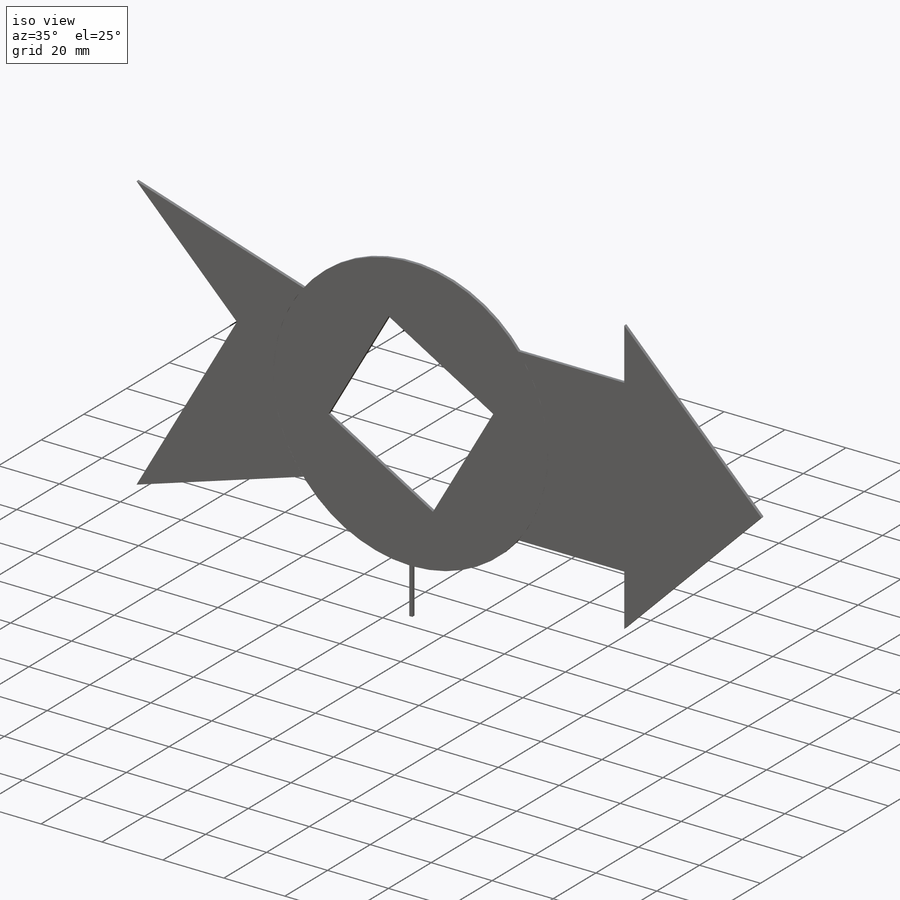
[diagram: iso view]
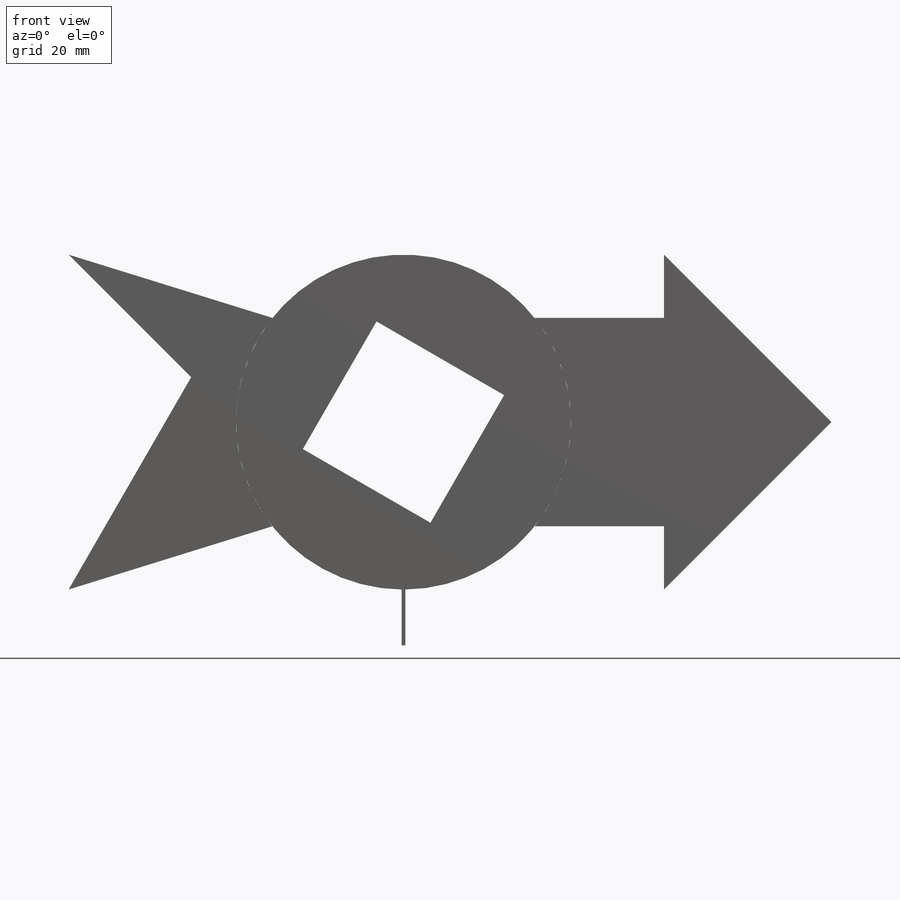
[diagram: front view]
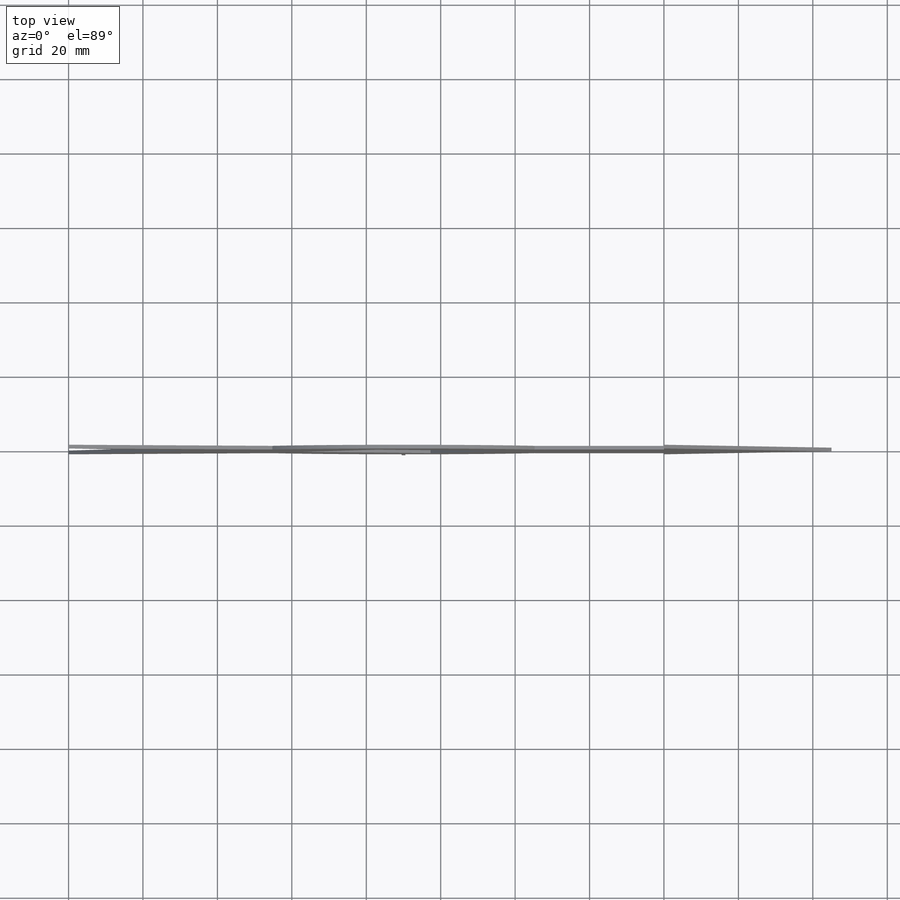
[diagram: top view]
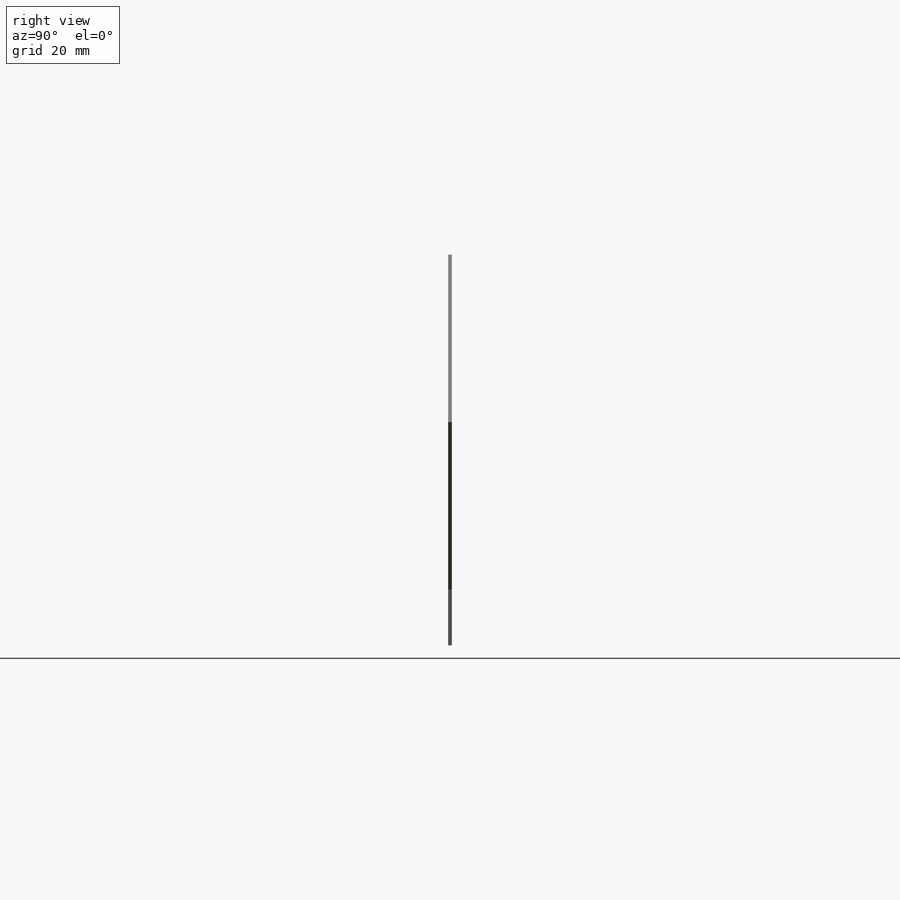
[diagram: right view]
SOLIDWORKS PART (.sldprt)
format: sldprt  version: not decoded by parser v0  size: 190,976 bytes
history: native  units: mm
features: sketch x4, extrude x3, material x1, cut_extrude x1 (+12 scaffold rows collapsed)
feature tree (21):
  scaffold x12  (default folders/planes/origin — collapsed)
  material  "Material <not specified>"
  sketch  "Sketch1"  dims[D2=90.0mm D1=90.0mm D3=60.0mm D4=1.0mm D5=0.5mm]
  extrude  "Central circle"  Depth=1mm
  sketch  "Sketch2"  dims[c1.D1=~48.778901mm c2.D1=30.0deg c2.D2=~50.856124mm c3.D2=45.0deg c3.D3=15.0mm c3.D4=32.0mm c3.D6=56.0mm c3.D7=~104.622727mm c4.D6=90.0mm c4.D7=56.0mm c4.D5=0.0mm]
  extrude  "Back of arrow"  Depth=1mm
  sketch  "Sketch3"  dims[c1.D2=17.0mm c1.D3=90.0mm c1.D4=90.0mm c2.D3=90.0mm c2.D4=70.0mm c2.D1=0.0mm]
  extrude  "Front of arrow"  Depth=1mm
  sketch  "Sketch4"  dims[c1.D2=56.0mm c1.D1=~42.126687mm c2.D1=60.0deg]
  cut_extrude  "Square hole"  Depth=1mm
decode coverage: 8 of 8 modeling features carry decoded parameters
note: ~ marks probable driven/reference dimensions
note: suppression state not decoded; provenance and decode notes live in map.json
